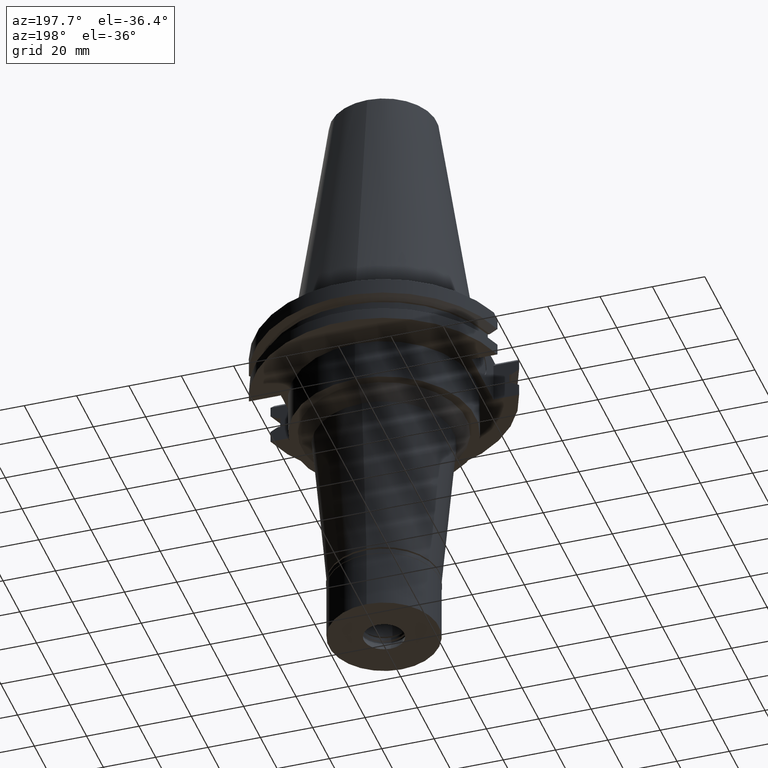
[diagram: clean part render]
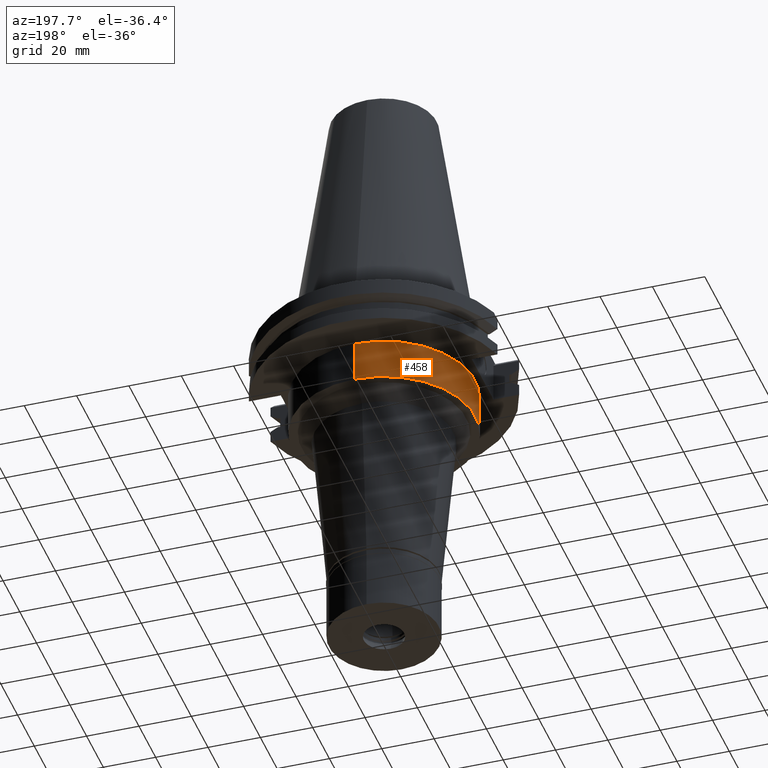
[diagram: same view with one face highlighted and labeled with its STEP entity id]
A machine part, auxiliary view. The second image highlights one B-rep face of the part: STEP entity #458.
In plain terms, the highlighted cylindrical surface (partial cylindrical patch) has radius 34.925 mm, axis along (0, 0, -1).
Its self-contained STEP definition (entity closure, byte-faithful):
#159 = DIRECTION ( 'NONE',  ( 0.0000000000000000000, 0.0000000000000000000, -1.000000000000000000 ) ) ;
#280 = ORIENTED_EDGE ( 'NONE', *, *, #2004, .T. ) ;
#421 = DIRECTION ( 'NONE',  ( 0.0000000000000000000, 0.0000000000000000000, -1.000000000000000000 ) ) ;
#458 = ADVANCED_FACE ( 'NONE', ( #515 ), #1547, .T. ) ;
#467 = EDGE_LOOP ( 'NONE', ( #280, #1908, #1481, #1172 ) ) ;
#478 = CARTESIAN_POINT ( 'NONE',  ( 0.0000000000000000000, 2.604272650726999704E-14, -35.00000000000000000 ) ) ;
#515 = FACE_OUTER_BOUND ( 'NONE', #467, .T. ) ;
#520 = CIRCLE ( 'NONE', #2540, 34.92499999999999716 ) ;
#521 = CARTESIAN_POINT ( 'NONE',  ( 0.0000000000000000000, 34.92499999999999716, -35.00000000000000000 ) ) ;
#533 = CARTESIAN_POINT ( 'NONE',  ( 0.0000000000000000000, 2.604272650726999704E-14, 112.6550000000000011 ) ) ;
#731 = DIRECTION ( 'NONE',  ( 0.0000000000000000000, 1.000000000000000000, 0.0000000000000000000 ) ) ;
#852 = EDGE_CURVE ( 'NONE', #1016, #2249, #902, .T. ) ;
#902 = LINE ( 'NONE', #2495, #923 ) ;
#923 = VECTOR ( 'NONE', #159, 1000.000000000000000 ) ;
#927 = LINE ( 'NONE', #3008, #1373 ) ;
#1016 = VERTEX_POINT ( 'NONE', #2613 ) ;
#1086 = CARTESIAN_POINT ( 'NONE',  ( 0.0000000000000000000, 34.92499999999999716, -19.05000000000000071 ) ) ;
#1172 = ORIENTED_EDGE ( 'NONE', *, *, #2923, .T. ) ;
#1215 = CIRCLE ( 'NONE', #2479, 34.92499999999999716 ) ;
#1332 = VERTEX_POINT ( 'NONE', #521 ) ;
#1346 = AXIS2_PLACEMENT_3D ( 'NONE', #533, #1568, #2630 ) ;
#1373 = VECTOR ( 'NONE', #421, 1000.000000000000000 ) ;
#1481 = ORIENTED_EDGE ( 'NONE', *, *, #3246, .T. ) ;
#1547 = CYLINDRICAL_SURFACE ( 'NONE', #1346, 34.92499999999999716 ) ;
#1568 = DIRECTION ( 'NONE',  ( 0.0000000000000000000, 0.0000000000000000000, -1.000000000000000000 ) ) ;
#1908 = ORIENTED_EDGE ( 'NONE', *, *, #852, .F. ) ;
#2004 = EDGE_CURVE ( 'NONE', #1332, #2249, #520, .T. ) ;
#2104 = CARTESIAN_POINT ( 'NONE',  ( 0.0000000000000000000, 2.604272650726999704E-14, -19.05000000000000071 ) ) ;
#2249 = VERTEX_POINT ( 'NONE', #3283 ) ;
#2479 = AXIS2_PLACEMENT_3D ( 'NONE', #2104, #3153, #3208 ) ;
#2495 = CARTESIAN_POINT ( 'NONE',  ( 0.0000000000000000000, -34.92499999999999716, -19.05000000000000071 ) ) ;
#2514 = VERTEX_POINT ( 'NONE', #1086 ) ;
#2540 = AXIS2_PLACEMENT_3D ( 'NONE', #478, #3335, #731 ) ;
#2613 = CARTESIAN_POINT ( 'NONE',  ( 0.0000000000000000000, -34.92499999999999716, -19.05000000000000071 ) ) ;
#2630 = DIRECTION ( 'NONE',  ( 0.0000000000000000000, -1.000000000000000000, 0.0000000000000000000 ) ) ;
#2923 = EDGE_CURVE ( 'NONE', #2514, #1332, #927, .T. ) ;
#3008 = CARTESIAN_POINT ( 'NONE',  ( 0.0000000000000000000, 34.92499999999999716, -19.05000000000000071 ) ) ;
#3153 = DIRECTION ( 'NONE',  ( 0.0000000000000000000, 0.0000000000000000000, -1.000000000000000000 ) ) ;
#3208 = DIRECTION ( 'NONE',  ( 0.0000000000000000000, -1.000000000000000000, 0.0000000000000000000 ) ) ;
#3246 = EDGE_CURVE ( 'NONE', #1016, #2514, #1215, .T. ) ;
#3283 = CARTESIAN_POINT ( 'NONE',  ( 0.0000000000000000000, -34.92499999999999716, -35.00000000000000000 ) ) ;
#3335 = DIRECTION ( 'NONE',  ( 0.0000000000000000000, 0.0000000000000000000, 1.000000000000000000 ) ) ;